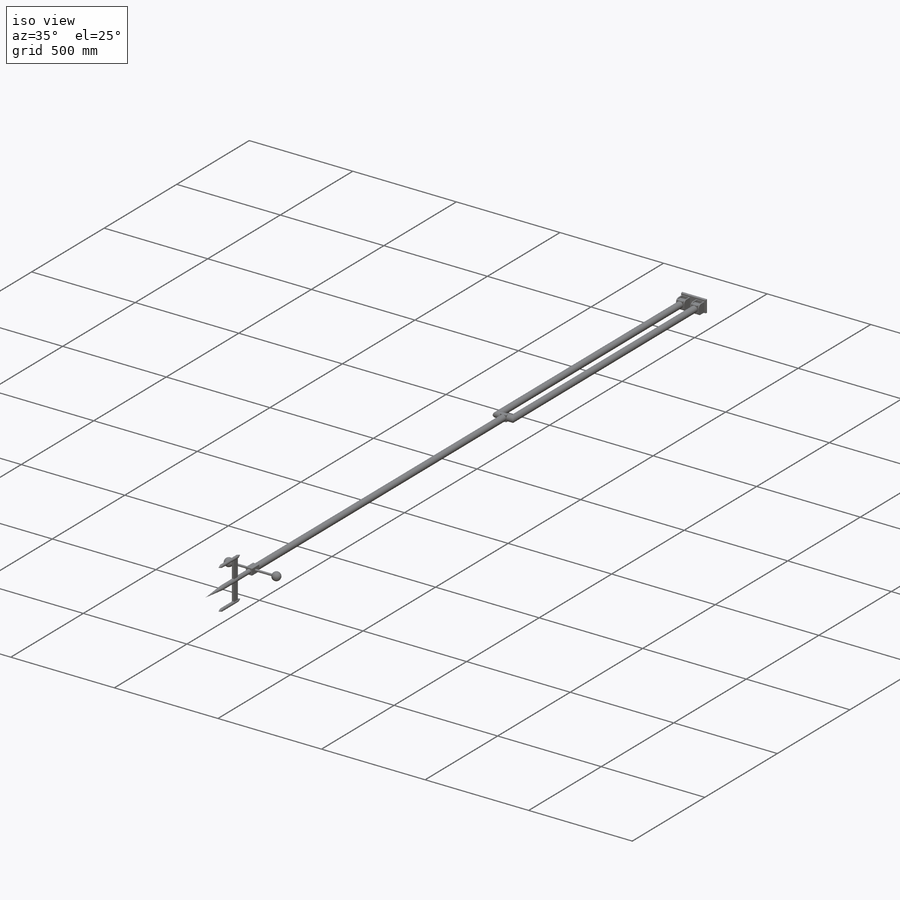
[diagram: iso view]
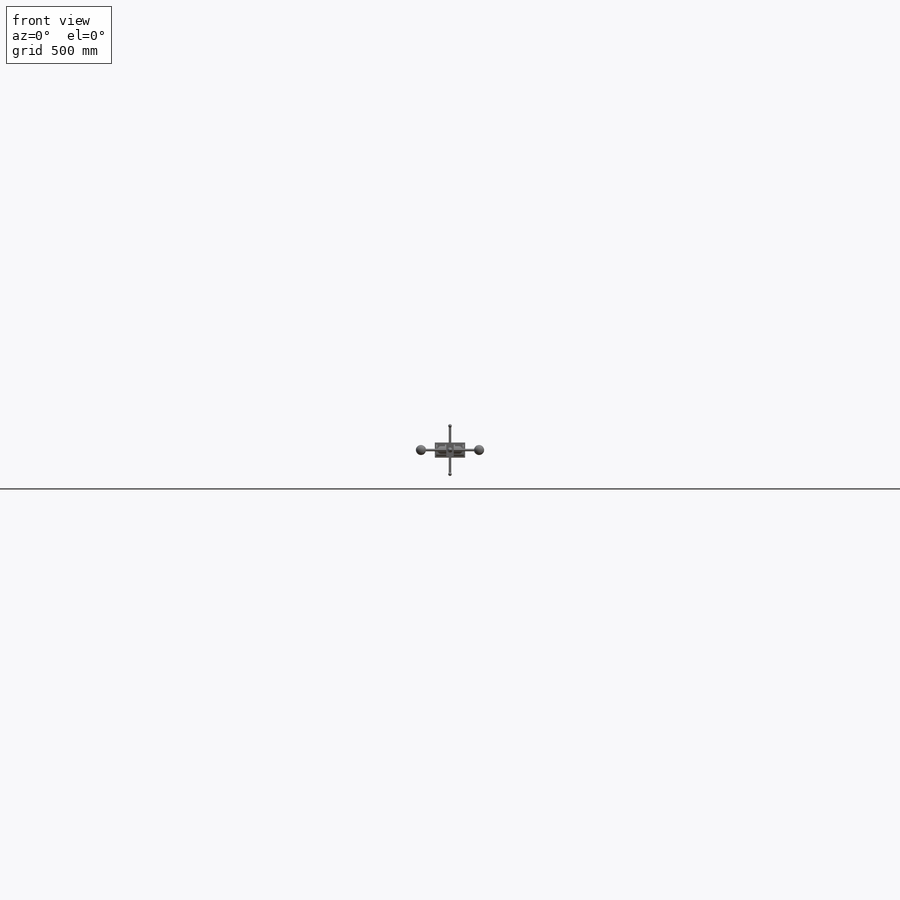
[diagram: front view]
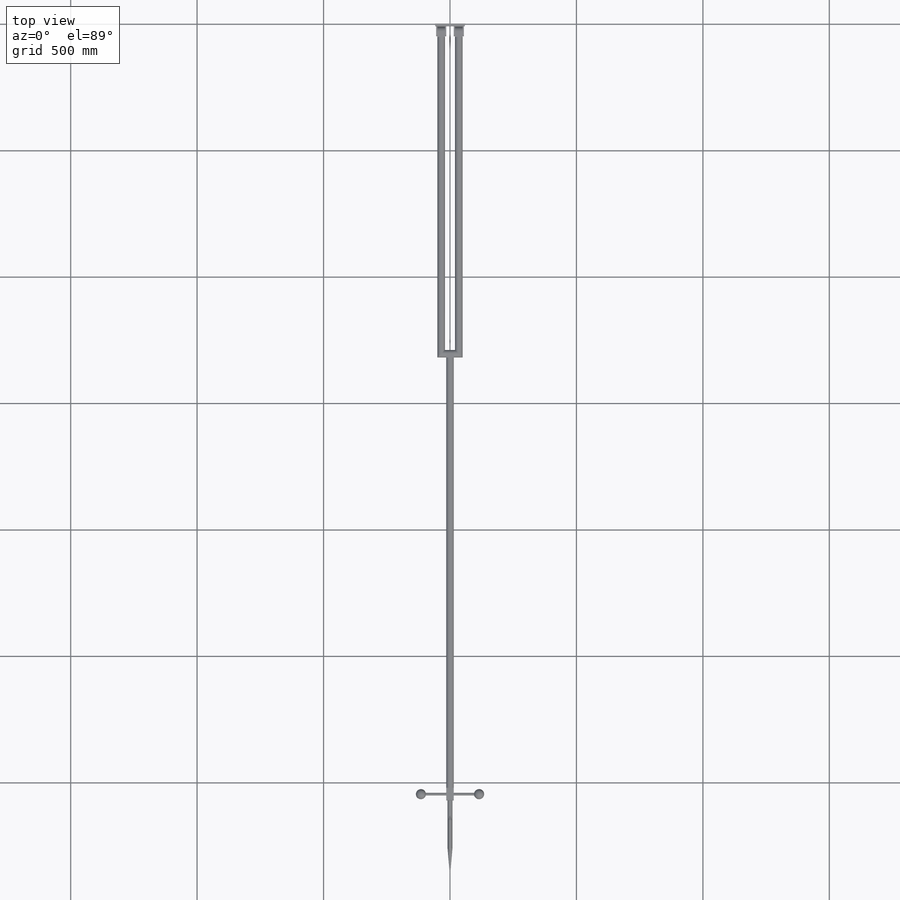
[diagram: top view]
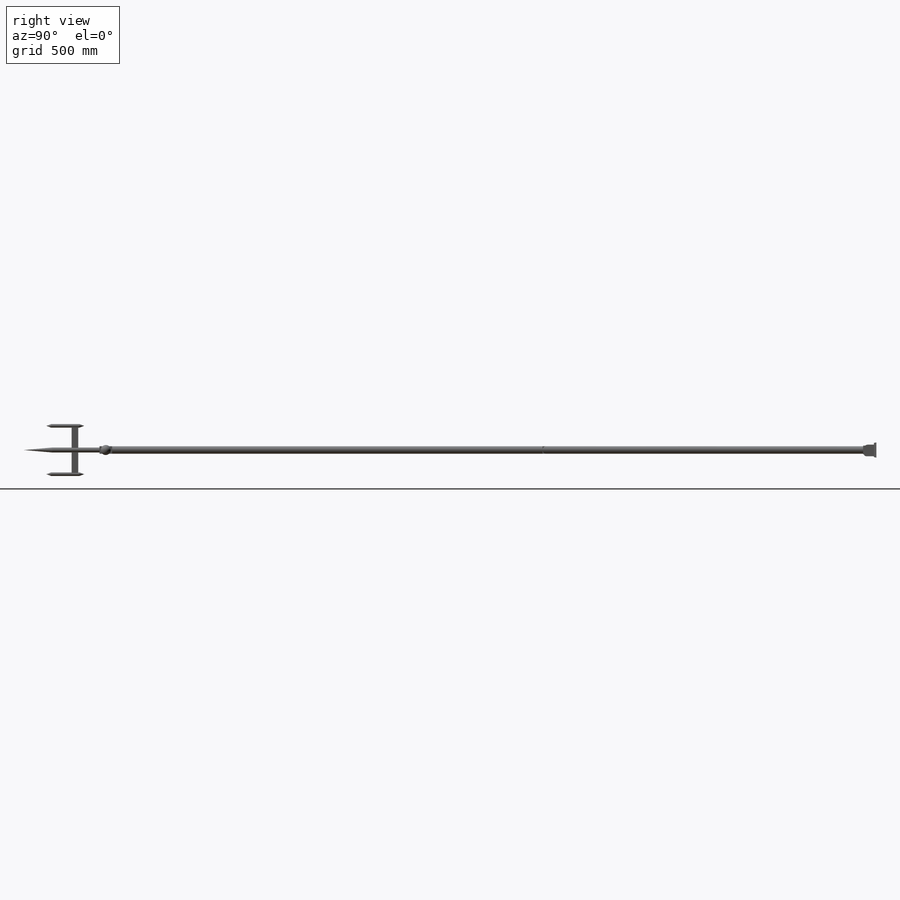
[diagram: right view]
SOLIDWORKS PART (.sldprt)
format: sldprt  version: not decoded by parser v0  size: 465,920 bytes
history: native  units: mm
features: sketch x17, extrude x12, cut_extrude x4, plane x3, mirror x3, chamfer x3, material x1, fillet x1, revolve x1 (+12 scaffold rows collapsed)
feature tree (57):
  scaffold x12  (default folders/planes/origin — collapsed)
  material  "Material <not specified>"
  sketch  "Sketch1"  dims[D1=120.0mm D2=60.0mm]
  extrude  "Boss-Extrude1"  Depth=10mm
  sketch  "Sketch2"  dims[D1=0.0mm]
  extrude  "Boss-Extrude2"  Depth=55mm
  sketch  "Sketch3"
  cut_extrude  "Cut-Extrude1"  Depth=15mm
  plane  "Plane1"
  sketch  "Sketch4"  dims[D1=35.0mm]
  cut_extrude  "Cut-Extrude2"  Depth=15mm
  sketch  "Sketch5"
  cut_extrude  "Cut-Extrude3"  Depth=65mm
  sketch  "Sketch6"  dims[D1=35.0mm]
  extrude  "Boss-Extrude3"  [1 undecoded]
  fillet  "Fillet1"  Radius=10mm
  sketch  "Sketch7"
  extrude  "Boss-Extrude4"  Depth=1270mm
  sketch  "Sketch8"
  cut_extrude  "Cut-Extrude4"  [1 undecoded]
  plane  "Plane2"
  sketch  "Sketch10"
  extrude  "Boss-Extrude5"  Depth=20mm
  mirror  "Mirror4"
  sketch  "Sketch11"
  extrude  "Boss-Extrude6"  [1 undecoded]
  sketch  "Sketch12"
  extrude  "Boss-Extrude8"  Depth=1701.8mm
  sketch  "Sketch13"
  extrude  "Boss-Extrude9"  Depth=50mm
  sketch  "Sketch14"  dims[D1=20.0mm]
  extrude  "Boss-Extrude10"  Depth=300mm
  chamfer  "Chamfer1"  Distance=10mm Angle=85deg
  sketch  "Sketch15"  dims[D1=10.0mm]
  extrude  "Boss-Extrude12"  Depth=100mm
  plane  "Plane3"
  sketch  "Sketch17"  dims[D1=40.0mm]
  revolve  "Revolve1"  Angle=360deg
  mirror  "Mirror5"
  sketch  "Sketch18"
  extrude  "Boss-Extrude13"  Depth=100mm
  sketch  "Sketch19"
  extrude  "Boss-Extrude14"  Depth=100mm
  chamfer  "Chamfer2"  Distance=7mm Angle=70deg
  chamfer  "Chamfer3"  Distance=7mm Angle=70deg
  mirror  "Mirror7"
decode coverage: 25 of 41 modeling features carry decoded parameters
note: 3 parameter values undecoded
summary: no parameter record found for 3 features
note: suppression state not decoded; provenance and decode notes live in map.json
